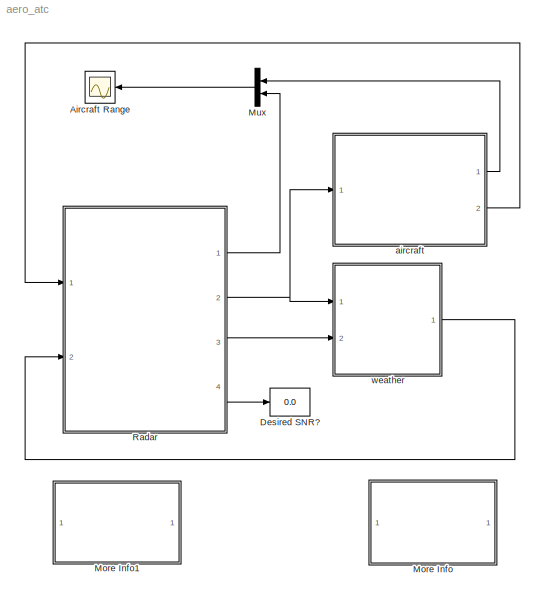
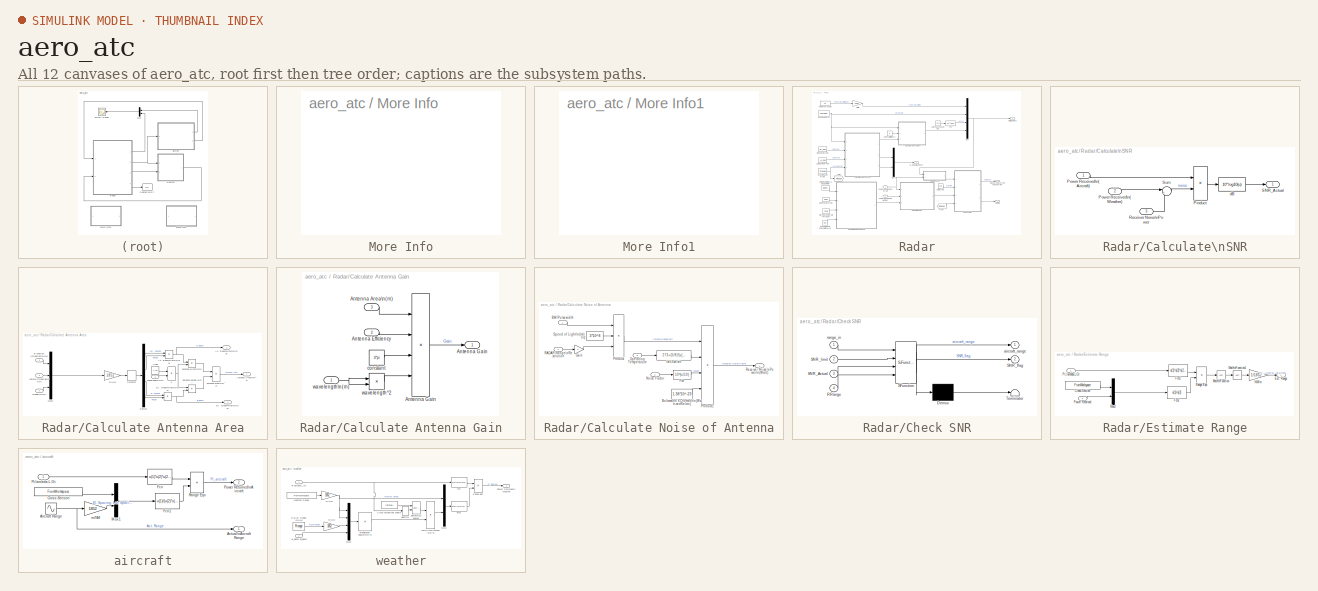
[diagram: thumbnail index - all 12 canvases of the model, root first then tree order]
MODEL aero_atc
KIND model
CONFIG InitFcn = aero_init_atc
CONFIG PreLoadFcn = aero_preload_atc
BLOCK [Scope] Aircraft Range
  DataFormat = StructureWithTime
  DeleteFcn = simscope BlockIsBeingDestroyed
  NumInputPorts = 1
  Ports = [1]
  TimeRange = 10300
  YMax = 65
  YMin = 0
BLOCK [Display] Desired SNR?
  Decimation = 1
  Ports = [1]
BLOCK [SubSystem] More Info
  MaskDisplay = disp('Double-click \\nhere for \\ninformation on \\nthis demonstration')
  MaskIconFrame = on
  MaskIconOpaque = on
  MaskIconRotate = none
  MaskIconUnits = autoscale
  MinAlgLoopOccurrences = off
  OpenFcn = aero_atcscript
  Ports = []
  PropExecContextAcrossSSBoundary = on
  RTWSystemCode = Auto
  TreatAsAtomicUnit = off
BLOCK [SubSystem] More Info1
  MaskDisplay = disp('Double click\\nhere for\\nSimulink Help')
  MaskIconFrame = on
  MaskIconOpaque = on
  MaskIconRotate = none
  MaskIconUnits = autoscale
  MinAlgLoopOccurrences = off
  OpenFcn = simcad(bdroot);
  Ports = []
  PropExecContextAcrossSSBoundary = on
  RTWSystemCode = Auto
  TreatAsAtomicUnit = off
BLOCK [Mux] Mux
  DisplayOption = bar
  Inputs = 2
  Ports = [2, 1]
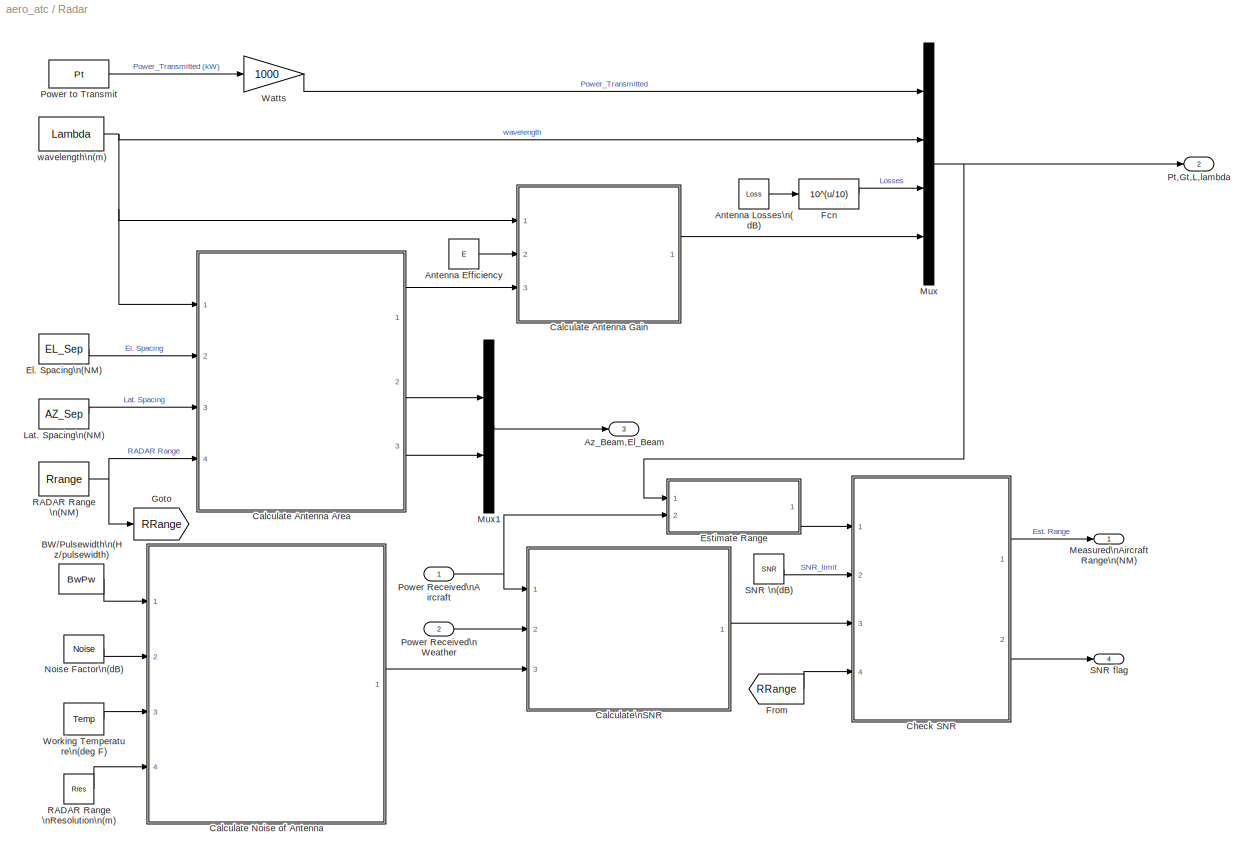
BLOCK [SubSystem] Radar
  MaskDisplay = image(radar)
  MaskIconFrame = on
  MaskIconOpaque = on
  MaskIconRotate = none
  MaskIconUnits = normalized
  MinAlgLoopOccurrences = off
  Ports = [2, 4]
  PropExecContextAcrossSSBoundary = on
  RTWSystemCode = Auto
  TreatAsAtomicUnit = off
BLOCK [Constant] Radar/Antenna Efficiency
  Value = E
BLOCK [Constant] Radar/Antenna Losses\n(dB)
  Value = Loss
BLOCK [Outport] Radar/Az_Beam,El_Beam
  BusOutputAsStruct = off
  IconDisplay = Port number
  Port = 3
BLOCK [Constant] Radar/BW//Pulsewidth\n(Hz//pulsewidth)
  Value = BwPw
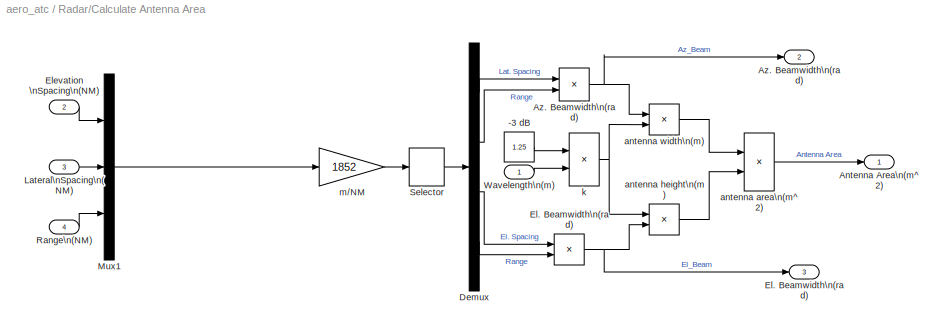
BLOCK [SubSystem] Radar/Calculate Antenna Area
  MinAlgLoopOccurrences = off
  Ports = [4, 3]
  PropExecContextAcrossSSBoundary = on
  RTWSystemCode = Auto
  TreatAsAtomicUnit = off
BLOCK [Constant] Radar/Calculate Antenna Area/-3 dB  
  Value = 1.25
BLOCK [Outport] Radar/Calculate Antenna Area/Antenna Area\n(m^2)
  BusOutputAsStruct = off
  IconDisplay = Port number
BLOCK [Product] Radar/Calculate Antenna Area/Az. Beamwidth\n(rad)
  Inputs = */
  Ports = [2, 1]
BLOCK [Outport] Radar/Calculate Antenna Area/Az. Beamwidth\n(rad) 
  BusOutputAsStruct = off
  IconDisplay = Port number
  Port = 2
BLOCK [Demux] Radar/Calculate Antenna Area/Demux
  Ports = [1, 4]
BLOCK [Product] Radar/Calculate Antenna Area/El. Beamwidth\n(rad)
  Inputs = */
  Ports = [2, 1]
BLOCK [Outport] Radar/Calculate Antenna Area/El. Beamwidth\n(rad) 
  BusOutputAsStruct = off
  IconDisplay = Port number
  Port = 3
BLOCK [Inport] Radar/Calculate Antenna Area/Elevation \nSpacing\n(NM)
  IconDisplay = Port number
  LatchInput = off
  Port = 2
BLOCK [Inport] Radar/Calculate Antenna Area/Lateral\nSpacing\n(NM)
  IconDisplay = Port number
  LatchInput = off
  Port = 3
BLOCK [Mux] Radar/Calculate Antenna Area/Mux1
  DisplayOption = bar
  Inputs = 3
  Ports = [3, 1]
BLOCK [Inport] Radar/Calculate Antenna Area/Range\n(NM)
  IconDisplay = Port number
  LatchInput = off
  Port = 4
BLOCK [Selector] Radar/Calculate Antenna Area/Selector
  Elements = [1 3 2 3]
  InputPortWidth = 3
  Ports = [1, 1]
BLOCK [Inport] Radar/Calculate Antenna Area/Wavelength\n(m)
  IconDisplay = Port number
  LatchInput = off
  Port = 1
BLOCK [Product] Radar/Calculate Antenna Area/antenna area\n(m^2)
  Ports = [2, 1]
BLOCK [Product] Radar/Calculate Antenna Area/antenna height\n(m)
  Inputs = */
  Ports = [2, 1]
BLOCK [Product] Radar/Calculate Antenna Area/antenna width\n(m)
  Inputs = /*
  Ports = [2, 1]
BLOCK [Product] Radar/Calculate Antenna Area/k
  Inputs = **
  Ports = [2, 1]
BLOCK [Gain] Radar/Calculate Antenna Area/m//NM
  Gain = 1852
BLOCK [SubSystem] Radar/Calculate Antenna Gain
  MinAlgLoopOccurrences = off
  Ports = [3, 1]
  PropExecContextAcrossSSBoundary = on
  RTWSystemCode = Auto
  TreatAsAtomicUnit = off
BLOCK [Inport] Radar/Calculate Antenna Gain/Antenna Area\n(m)
  IconDisplay = Port number
  LatchInput = off
  Port = 3
BLOCK [Inport] Radar/Calculate Antenna Gain/Antenna Efficiency
  IconDisplay = Port number
  LatchInput = off
  Port = 2
BLOCK [Product] Radar/Calculate Antenna Gain/Antenna Gain
  Inputs = ***/
  Ports = [4, 1]
BLOCK [Outport] Radar/Calculate Antenna Gain/Antenna Gain 
  BusOutputAsStruct = off
  IconDisplay = Port number
BLOCK [Constant] Radar/Calculate Antenna Gain/constant
  Value = 4*pi
BLOCK [Inport] Radar/Calculate Antenna Gain/wavelength\n(m)
  IconDisplay = Port number
  LatchInput = off
  Port = 1
BLOCK [Product] Radar/Calculate Antenna Gain/wavelength^2
  Ports = [2, 1]
BLOCK [SubSystem] Radar/Calculate Noise of Antenna
  MinAlgLoopOccurrences = off
  Ports = [4, 1]
  PropExecContextAcrossSSBoundary = on
  RTWSystemCode = Auto
  TreatAsAtomicUnit = off
BLOCK [Inport] Radar/Calculate Noise of Antenna/BW//Pulsewidth
  IconDisplay = Port number
  LatchInput = off
  Port = 1
BLOCK [Constant] Radar/Calculate Noise of Antenna/Boltzmann's Constant\n(Watt-sec//Kelvin)
  Value = 1.38*10^-23
BLOCK [Fcn] Radar/Calculate Noise of Antenna/Fcn
  Expr = 10^(u/10)
BLOCK [Gain] Radar/Calculate Noise of Antenna/Gain
  Gain = 2
BLOCK [Inport] Radar/Calculate Noise of Antenna/Noise Factor
  IconDisplay = Port number
  LatchInput = off
  Port = 2
BLOCK [Inport] Radar/Calculate Noise of Antenna/Operating Temperature
  IconDisplay = Port number
  LatchInput = off
  Port = 3
BLOCK [Product] Radar/Calculate Noise of Antenna/Product
  Inputs = **/
  Ports = [3, 1]
BLOCK [Product] Radar/Calculate Noise of Antenna/Product1
  Inputs = 4
  Ports = [4, 1]
BLOCK [Inport] Radar/Calculate Noise of Antenna/RADAR Range\nResolution
  IconDisplay = Port number
  LatchInput = off
  Port = 4
BLOCK [Outport] Radar/Calculate Noise of Antenna/Receiver Noise\nPower\n(Watt)
  BusOutputAsStruct = off
  IconDisplay = Port number
BLOCK [Constant] Radar/Calculate Noise of Antenna/Speed of Light\n(m//sec)
  Value = 3*10^8
BLOCK [Fcn] Radar/Calculate Noise of Antenna/fah2kelvin
  Expr = 273+(5/9)*(u[1]-32)
BLOCK [SubSystem] Radar/Calculate\nSNR
  MinAlgLoopOccurrences = off
  Ports = [3, 1]
  PropExecContextAcrossSSBoundary = on
  RTWSystemCode = Auto
  TreatAsAtomicUnit = off
BLOCK [Inport] Radar/Calculate\nSNR/Power Received\n(Aircraft)
  IconDisplay = Port number
  LatchInput = off
  Port = 1
BLOCK [Inport] Radar/Calculate\nSNR/Power Received\n(Weather)
  IconDisplay = Port number
  LatchInput = off
  Port = 2
BLOCK [Product] Radar/Calculate\nSNR/Product
  Inputs = */
  Ports = [2, 1]
BLOCK [Inport] Radar/Calculate\nSNR/Receiver Noise\nPower
  IconDisplay = Port number
  LatchInput = off
  Port = 3
BLOCK [Outport] Radar/Calculate\nSNR/SNR_Actual
  BusOutputAsStruct = off
  IconDisplay = Port number
BLOCK [Sum] Radar/Calculate\nSNR/Sum
  IconShape = round
  Inputs = |++
  Ports = [2, 1]
BLOCK [Fcn] Radar/Calculate\nSNR/dB
  Expr = 10*log10(u)
BLOCK [SubSystem] Radar/Check SNR
  MaskDescription = Stateflow diagram
  MaskDisplay = plot(sf('Private','sfblk','xIcon'),sf('Private','sfblk','yIcon'));text(0.5,0,sf('Private', 'sfblk', 'tIcon'),'HorizontalAl','Center','VerticalAl','Bottom');
  MaskIconFrame = off
  MaskIconOpaque = off
  MaskIconRotate = none
  MaskIconUnits = autoscale
  MaskSelfModifiable = on
  MaskType = Stateflow
  MinAlgLoopOccurrences = off
  Ports = [4, 2]
  PropExecContextAcrossSSBoundary = on
  RTWSystemCode = Auto
  TreatAsAtomicUnit = off
BLOCK [Demux] Radar/Check SNR/ Demux 
  Outputs = 1
  Ports = [1, 1]
BLOCK [S-Function] Radar/Check SNR/ SFunction 
  FunctionName = sf_sfun
  PortCounts = [4 3]
  Ports = [4, 3]
  Tag = Stateflow S-Function aero_atc 1
BLOCK [Terminator] Radar/Check SNR/ Terminator 
BLOCK [Inport] Radar/Check SNR/RRange
  IconDisplay = Port number
  LatchInput = off
  Port = 4
BLOCK [Inport] Radar/Check SNR/SNR_Actual
  IconDisplay = Port number
  LatchInput = off
  Port = 3
BLOCK [Outport] Radar/Check SNR/SNR_flag
  BusOutputAsStruct = off
  IconDisplay = Port number
  Port = 2
BLOCK [Inport] Radar/Check SNR/SNR_limit
  IconDisplay = Port number
  LatchInput = off
  Port = 2
BLOCK [Outport] Radar/Check SNR/aircraft_range
  BusOutputAsStruct = off
  IconDisplay = Port number
BLOCK [Inport] Radar/Check SNR/range_in
  IconDisplay = Port number
  LatchInput = off
  Port = 1
BLOCK [Constant] Radar/El. Spacing\n(NM)
  Value = EL_Sep
BLOCK [SubSystem] Radar/Estimate Range
  MinAlgLoopOccurrences = off
  Ports = [2, 1]
  PropExecContextAcrossSSBoundary = on
  RTWSystemCode = Auto
  TreatAsAtomicUnit = off
BLOCK [FromWorkspace] Radar/Estimate Range/Cross-Section
  SampleTime = 0
  VariableName = [T_xsection,U_xsection]
BLOCK [Outport] Radar/Estimate Range/Est. Range
  BusOutputAsStruct = off
  IconDisplay = Port number
BLOCK [Fcn] Radar/Estimate Range/Fcn1
  Expr = u(1)*u(2)*u(2)*u(4)*u(4)/(64*pi*pi*pi*u(3))
BLOCK [Fcn] Radar/Estimate Range/Fcn2
  Expr = u(1)/u(2)
BLOCK [Math] Radar/Estimate Range/Math\nFunction
  Operator = sqrt
  Ports = [1, 1]
BLOCK [Math] Radar/Estimate Range/Math\nFunction1
  Operator = sqrt
  Ports = [1, 1]
BLOCK [Mux] Radar/Estimate Range/Mux2
  DisplayOption = bar
  Inputs = 2
  Ports = [2, 1]
BLOCK [Gain] Radar/Estimate Range/NM//m
  Gain = 1/1852
BLOCK [Inport] Radar/Estimate Range/Power Received
  IconDisplay = Port number
  LatchInput = off
  Port = 2
BLOCK [Inport] Radar/Estimate Range/Pt,lambda,L,Gt
  IconDisplay = Port number
  LatchInput = off
  Port = 1
BLOCK [Product] Radar/Estimate Range/Range Eqn
  Ports = [2, 1]
BLOCK [Fcn] Radar/Fcn
  Expr = 10^(u/10)
BLOCK [From] Radar/From
  DialogController = Simulink.DDGSource
  GotoTag = RRange
BLOCK [Goto] Radar/Goto
  DialogController = Simulink.DDGSource
  GotoTag = RRange
  TagVisibility = local
BLOCK [Constant] Radar/Lat. Spacing\n(NM)
  Value = AZ_Sep
BLOCK [Outport] Radar/Measured\nAircraft Range\n(NM)
  BusOutputAsStruct = off
  IconDisplay = Port number
BLOCK [Mux] Radar/Mux
  DisplayOption = bar
  Ports = [4, 1]
BLOCK [Mux] Radar/Mux1
  DisplayOption = bar
  Inputs = 2
  Ports = [2, 1]
BLOCK [Constant] Radar/Noise Factor\n(dB)
  Value = Noise
BLOCK [Inport] Radar/Power Received\nAircraft
  IconDisplay = Port number
  LatchInput = off
  Port = 1
BLOCK [Inport] Radar/Power Received\nWeather
  IconDisplay = Port number
  LatchInput = off
  Port = 2
BLOCK [Constant] Radar/Power to Transmit
  Value = Pt
BLOCK [Outport] Radar/Pt,Gt,L,lambda
  BusOutputAsStruct = off
  IconDisplay = Port number
  Port = 2
BLOCK [Constant] Radar/RADAR Range \n(NM)
  Value = Rrange
BLOCK [Constant] Radar/RADAR Range \nResolution\n(m)
  Value = Rres
BLOCK [Constant] Radar/SNR \n(dB)
  Value = SNR
BLOCK [Outport] Radar/SNR flag
  BusOutputAsStruct = off
  IconDisplay = Port number
  Port = 4
BLOCK [Gain] Radar/Watts
  Gain = 1000
BLOCK [Constant] Radar/Working Temperature\n(deg F)
  Value = Temp
BLOCK [Constant] Radar/wavelength\n(m) 
  Value = Lambda
BLOCK [SubSystem] aircraft
  MaskDisplay = image(plane)
  MaskIconFrame = on
  MaskIconOpaque = on
  MaskIconRotate = none
  MaskIconUnits = autoscale
  MinAlgLoopOccurrences = off
  Ports = [1, 2]
  PropExecContextAcrossSSBoundary = on
  RTWSystemCode = Auto
  TreatAsAtomicUnit = off
BLOCK [Outport] aircraft/Actual\nAircraft Range
  BusOutputAsStruct = off
  IconDisplay = Port number
BLOCK [Sin] aircraft/Aircraft Range
  Amplitude = 25
  Bias = 35
  Frequency = 0.0025
  Ports = [0, 1]
  SampleTime = 0
  SineType = Time based
BLOCK [FromWorkspace] aircraft/Cross-Section
  Interpolate = off
  OutputAfterFinalValue = Holding final value
  SampleTime = 0
  VariableName = [T_xsection,U_xsection]
BLOCK [Fcn] aircraft/Fcn
  Expr = u(1)*u(2)*u(2)*u(4)*u(4)/(64*pi*pi*pi*u(3))
BLOCK [Fcn] aircraft/Fcn1
  Expr = u(1)/(u(2)*u(2)*u(2)*u(2))
BLOCK [Mux] aircraft/Mux1
  DisplayOption = bar
  Inputs = 2
  Ports = [2, 1]
BLOCK [Outport] aircraft/Power Returned\nAircraft
  BusOutputAsStruct = off
  IconDisplay = Port number
  Port = 2
BLOCK [Inport] aircraft/Pt,lambda,L,Gt
  IconDisplay = Port number
  LatchInput = off
  Port = 1
BLOCK [Product] aircraft/Range Eqn
  Ports = [2, 1]
BLOCK [Gain] aircraft/m//NM
  Gain = 1852
BLOCK [SubSystem] weather
  MaskDisplay = image(weather);
  MaskIconFrame = on
  MaskIconOpaque = on
  MaskIconRotate = none
  MaskIconUnits = normalized
  MinAlgLoopOccurrences = off
  Ports = [2, 1]
  PropExecContextAcrossSSBoundary = on
  RTWSystemCode = Auto
  TreatAsAtomicUnit = off
BLOCK [Inport] weather/Az_Beam,El_Beam
  IconDisplay = Port number
  LatchInput = off
  Port = 2
BLOCK [Constant] weather/Cross-section//unit volume
  Value = rainfall
BLOCK [Fcn] weather/Fcn
  Expr = u(1)*u(2)*u(2)*u(4)*u(4)/(64*pi*pi*pi)
BLOCK [Fcn] weather/Fcn1
  Expr = u(2)/(u(1)*u(1)*u(1)*u(1))
BLOCK [Mux] weather/Mux1
  DisplayOption = bar
  Inputs = 2
  Ports = [2, 1]
BLOCK [Mux] weather/Mux2
  DisplayOption = bar
  Ports = [4, 1]
BLOCK [Outport] weather/Power Returned\nWeather
  BusOutputAsStruct = off
  IconDisplay = Port number
BLOCK [Product] weather/Precipitation Volume\n(m^3)
  Inputs = *
  Ports = [1, 1]
BLOCK [Inport] weather/Pt,lambda,L,Gt
  IconDisplay = Port number
  LatchInput = off
  Port = 1
BLOCK [Constant] weather/RADAR Range \n(NM)
  Value = Rrange
BLOCK [Product] weather/Range Eqn
  Ports = [2, 1]
BLOCK [Selector] weather/Selector1
  Elements = 2
  InputPortWidth = 4
  Ports = [1, 1]
BLOCK [Product] weather/Total Cross-section\n(m^2)
  Ports = [2, 1]
BLOCK [FromWorkspace] weather/Weather Range
  Interpolate = off
  OutputAfterFinalValue = Holding final value
  SampleTime = 0
  VariableName = [T_Weather,R_Weather]
BLOCK [Gain] weather/m//NM
  Gain = 1852
BLOCK [Gain] weather/m//NM 
  Gain = 1852
BLOCK [Reference] weather/sigmai\n(2D lookup)  REF=simulink3/Functions\n& Tables/Look-Up\nTable (2-D)
  Ports = [2, 1]
  SourceBlock = simulink3/Functions\n& Tables/Look-Up\nTable (2-D)
  SourceType = Lookup Table (2-D)
  t = sigma_table
  x = rainfall_bp
  y = lambda_bp
LINE Mux:1 -> Aircraft Range:1
LINE Radar/Antenna Efficiency:1 -> Radar/Calculate Antenna Gain:2
LINE Radar/Antenna Losses\n(dB):1 -> Radar/Fcn:1
LINE Radar/BW//Pulsewidth\n(Hz//pulsewidth):1 -> Radar/Calculate Noise of Antenna:1
LINE Radar/Calculate Antenna Area/-3 dB  :1 -> Radar/Calculate Antenna Area/k:1
NET Radar/Calculate Antenna Area/Az. Beamwidth\n(rad):1 -> Radar/Calculate Antenna Area/Az. Beamwidth\n(rad) :1, Radar/Calculate Antenna Area/antenna width\n(m):1
LINE Radar/Calculate Antenna Area/Demux:1 -> Radar/Calculate Antenna Area/Az. Beamwidth\n(rad):1
LINE Radar/Calculate Antenna Area/Demux:2 -> Radar/Calculate Antenna Area/Az. Beamwidth\n(rad):2
LINE Radar/Calculate Antenna Area/Demux:3 -> Radar/Calculate Antenna Area/El. Beamwidth\n(rad):1
LINE Radar/Calculate Antenna Area/Demux:4 -> Radar/Calculate Antenna Area/El. Beamwidth\n(rad):2
NET Radar/Calculate Antenna Area/El. Beamwidth\n(rad):1 -> Radar/Calculate Antenna Area/El. Beamwidth\n(rad) :1, Radar/Calculate Antenna Area/antenna height\n(m):2
LINE Radar/Calculate Antenna Area/Elevation \nSpacing\n(NM):1 -> Radar/Calculate Antenna Area/Mux1:1
LINE Radar/Calculate Antenna Area/Lateral\nSpacing\n(NM):1 -> Radar/Calculate Antenna Area/Mux1:2
LINE Radar/Calculate Antenna Area/Mux1:1 -> Radar/Calculate Antenna Area/m//NM:1
LINE Radar/Calculate Antenna Area/Range\n(NM):1 -> Radar/Calculate Antenna Area/Mux1:3
LINE Radar/Calculate Antenna Area/Selector:1 -> Radar/Calculate Antenna Area/Demux:1
LINE Radar/Calculate Antenna Area/Wavelength\n(m):1 -> Radar/Calculate Antenna Area/k:2
LINE Radar/Calculate Antenna Area/antenna area\n(m^2):1 -> Radar/Calculate Antenna Area/Antenna Area\n(m^2):1
LINE Radar/Calculate Antenna Area/antenna height\n(m):1 -> Radar/Calculate Antenna Area/antenna area\n(m^2):2
LINE Radar/Calculate Antenna Area/antenna width\n(m):1 -> Radar/Calculate Antenna Area/antenna area\n(m^2):1
NET Radar/Calculate Antenna Area/k:1 -> Radar/Calculate Antenna Area/antenna height\n(m):1, Radar/Calculate Antenna Area/antenna width\n(m):2
LINE Radar/Calculate Antenna Area/m//NM:1 -> Radar/Calculate Antenna Area/Selector:1
LINE Radar/Calculate Antenna Area:1 -> Radar/Calculate Antenna Gain:3
LINE Radar/Calculate Antenna Area:2 -> Radar/Mux1:1
LINE Radar/Calculate Antenna Area:3 -> Radar/Mux1:2
LINE Radar/Calculate Antenna Gain/Antenna Area\n(m):1 -> Radar/Calculate Antenna Gain/Antenna Gain:1
LINE Radar/Calculate Antenna Gain/Antenna Efficiency:1 -> Radar/Calculate Antenna Gain/Antenna Gain:2
LINE Radar/Calculate Antenna Gain/Antenna Gain:1 -> Radar/Calculate Antenna Gain/Antenna Gain :1
LINE Radar/Calculate Antenna Gain/constant:1 -> Radar/Calculate Antenna Gain/Antenna Gain:3
NET Radar/Calculate Antenna Gain/wavelength\n(m):1 -> Radar/Calculate Antenna Gain/wavelength^2:1, Radar/Calculate Antenna Gain/wavelength^2:2
LINE Radar/Calculate Antenna Gain/wavelength^2:1 -> Radar/Calculate Antenna Gain/Antenna Gain:4
LINE Radar/Calculate Antenna Gain:1 -> Radar/Mux:4
LINE Radar/Calculate Noise of Antenna/BW//Pulsewidth:1 -> Radar/Calculate Noise of Antenna/Product:1
LINE Radar/Calculate Noise of Antenna/Boltzmann's Constant\n(Watt-sec//Kelvin):1 -> Radar/Calculate Noise of Antenna/Product1:4
LINE Radar/Calculate Noise of Antenna/Fcn:1 -> Radar/Calculate Noise of Antenna/Product1:3
LINE Radar/Calculate Noise of Antenna/Gain:1 -> Radar/Calculate Noise of Antenna/Product:3
LINE Radar/Calculate Noise of Antenna/Noise Factor:1 -> Radar/Calculate Noise of Antenna/Fcn:1
LINE Radar/Calculate Noise of Antenna/Operating Temperature:1 -> Radar/Calculate Noise of Antenna/fah2kelvin:1
LINE Radar/Calculate Noise of Antenna/Product1:1 -> Radar/Calculate Noise of Antenna/Receiver Noise\nPower\n(Watt):1
LINE Radar/Calculate Noise of Antenna/Product:1 -> Radar/Calculate Noise of Antenna/Product1:1
LINE Radar/Calculate Noise of Antenna/RADAR Range\nResolution:1 -> Radar/Calculate Noise of Antenna/Gain:1
LINE Radar/Calculate Noise of Antenna/Speed of Light\n(m//sec):1 -> Radar/Calculate Noise of Antenna/Product:2
LINE Radar/Calculate Noise of Antenna/fah2kelvin:1 -> Radar/Calculate Noise of Antenna/Product1:2
LINE Radar/Calculate Noise of Antenna:1 -> Radar/Calculate\nSNR:3
LINE Radar/Calculate\nSNR/Power Received\n(Aircraft):1 -> Radar/Calculate\nSNR/Product:1
LINE Radar/Calculate\nSNR/Power Received\n(Weather):1 -> Radar/Calculate\nSNR/Sum:1
LINE Radar/Calculate\nSNR/Product:1 -> Radar/Calculate\nSNR/dB:1
LINE Radar/Calculate\nSNR/Receiver Noise\nPower:1 -> Radar/Calculate\nSNR/Sum:2
LINE Radar/Calculate\nSNR/Sum:1 -> Radar/Calculate\nSNR/Product:2
LINE Radar/Calculate\nSNR/dB:1 -> Radar/Calculate\nSNR/SNR_Actual:1
LINE Radar/Calculate\nSNR:1 -> Radar/Check SNR:3
LINE Radar/Check SNR/ Demux :1 -> Radar/Check SNR/ Terminator :1
LINE Radar/Check SNR/ SFunction :1 -> Radar/Check SNR/ Demux :1
LINE Radar/Check SNR/ SFunction :2 -> Radar/Check SNR/aircraft_range:1
LINE Radar/Check SNR/ SFunction :3 -> Radar/Check SNR/SNR_flag:1
LINE Radar/Check SNR/RRange:1 -> Radar/Check SNR/ SFunction :4
LINE Radar/Check SNR/SNR_Actual:1 -> Radar/Check SNR/ SFunction :3
LINE Radar/Check SNR/SNR_limit:1 -> Radar/Check SNR/ SFunction :2
LINE Radar/Check SNR/range_in:1 -> Radar/Check SNR/ SFunction :1
LINE Radar/Check SNR:1 -> Radar/Measured\nAircraft Range\n(NM):1
LINE Radar/Check SNR:2 -> Radar/SNR flag:1
LINE Radar/El. Spacing\n(NM):1 -> Radar/Calculate Antenna Area:2
LINE Radar/Estimate Range/Cross-Section:1 -> Radar/Estimate Range/Mux2:1
LINE Radar/Estimate Range/Fcn1:1 -> Radar/Estimate Range/Range Eqn:1
LINE Radar/Estimate Range/Fcn2:1 -> Radar/Estimate Range/Range Eqn:2
LINE Radar/Estimate Range/Math\nFunction1:1 -> Radar/Estimate Range/NM//m:1
LINE Radar/Estimate Range/Math\nFunction:1 -> Radar/Estimate Range/Math\nFunction1:1
LINE Radar/Estimate Range/Mux2:1 -> Radar/Estimate Range/Fcn2:1
LINE Radar/Estimate Range/NM//m:1 -> Radar/Estimate Range/Est. Range:1
LINE Radar/Estimate Range/Power Received:1 -> Radar/Estimate Range/Mux2:2
LINE Radar/Estimate Range/Pt,lambda,L,Gt:1 -> Radar/Estimate Range/Fcn1:1
LINE Radar/Estimate Range/Range Eqn:1 -> Radar/Estimate Range/Math\nFunction:1
LINE Radar/Estimate Range:1 -> Radar/Check SNR:1
LINE Radar/Fcn:1 -> Radar/Mux:3
LINE Radar/From:1 -> Radar/Check SNR:4
LINE Radar/Lat. Spacing\n(NM):1 -> Radar/Calculate Antenna Area:3
LINE Radar/Mux1:1 -> Radar/Az_Beam,El_Beam:1
NET Radar/Mux:1 -> Radar/Estimate Range:1, Radar/Pt,Gt,L,lambda:1
LINE Radar/Noise Factor\n(dB):1 -> Radar/Calculate Noise of Antenna:2
NET Radar/Power Received\nAircraft:1 -> Radar/Calculate\nSNR:1, Radar/Estimate Range:2
LINE Radar/Power Received\nWeather:1 -> Radar/Calculate\nSNR:2
LINE Radar/Power to Transmit:1 -> Radar/Watts:1
NET Radar/RADAR Range \n(NM):1 -> Radar/Calculate Antenna Area:4, Radar/Goto:1
LINE Radar/RADAR Range \nResolution\n(m):1 -> Radar/Calculate Noise of Antenna:4
LINE Radar/SNR \n(dB):1 -> Radar/Check SNR:2
LINE Radar/Watts:1 -> Radar/Mux:1
LINE Radar/Working Temperature\n(deg F):1 -> Radar/Calculate Noise of Antenna:3
NET Radar/wavelength\n(m) :1 -> Radar/Calculate Antenna Area:1, Radar/Calculate Antenna Gain:1, Radar/Mux:2
LINE Radar:1 -> Mux:2
NET Radar:2 -> aircraft:1, weather:1
LINE Radar:3 -> weather:2
LINE Radar:4 -> Desired SNR?:1
NET aircraft/Aircraft Range:1 -> aircraft/Actual\nAircraft Range:1, aircraft/m//NM:1
LINE aircraft/Cross-Section:1 -> aircraft/Mux1:1
LINE aircraft/Fcn1:1 -> aircraft/Range Eqn:2
LINE aircraft/Fcn:1 -> aircraft/Range Eqn:1
LINE aircraft/Mux1:1 -> aircraft/Fcn1:1
LINE aircraft/Pt,lambda,L,Gt:1 -> aircraft/Fcn:1
LINE aircraft/Range Eqn:1 -> aircraft/Power Returned\nAircraft:1
LINE aircraft/m//NM:1 -> aircraft/Mux1:2
LINE aircraft:1 -> Mux:1
LINE aircraft:2 -> Radar:1
LINE weather/Az_Beam,El_Beam:1 -> weather/Mux2:4
LINE weather/Cross-section//unit volume:1 -> weather/sigmai\n(2D lookup):1
LINE weather/Fcn1:1 -> weather/Range Eqn:2
LINE weather/Fcn:1 -> weather/Range Eqn:1
LINE weather/Mux1:1 -> weather/Fcn1:1
LINE weather/Mux2:1 -> weather/Precipitation Volume\n(m^3):1
LINE weather/Precipitation Volume\n(m^3):1 -> weather/Total Cross-section\n(m^2):2
NET weather/Pt,lambda,L,Gt:1 -> weather/Fcn:1, weather/Selector1:1
LINE weather/RADAR Range \n(NM):1 -> weather/m//NM:1
LINE weather/Range Eqn:1 -> weather/Power Returned\nWeather:1
LINE weather/Selector1:1 -> weather/sigmai\n(2D lookup):2
LINE weather/Total Cross-section\n(m^2):1 -> weather/Mux1:2
LINE weather/Weather Range:1 -> weather/m//NM :1
NET weather/m//NM :1 -> weather/Mux1:1, weather/Mux2:1, weather/Mux2:2
LINE weather/m//NM:1 -> weather/Mux2:3
LINE weather/sigmai\n(2D lookup):1 -> weather/Total Cross-section\n(m^2):1
LINE weather:1 -> Radar:2
note: NET lines group one-source signal fan-out (src -> all destinations, sorted); 1:1 wires keep LINE
CHART Radar/Check SNR states=6 transitions=10
  STATE_LABEL 'Visability'
  STATE_LABEL 'detect\\nduring: aircraft_range = range_in;'
  STATE_LABEL 'no_detect\\nduring: aircraft_range =0;'
  STATE_LABEL 'SNR'
  STATE_LABEL 'Less_than'
  STATE_LABEL 'Equal_to_or_Greater_than'
